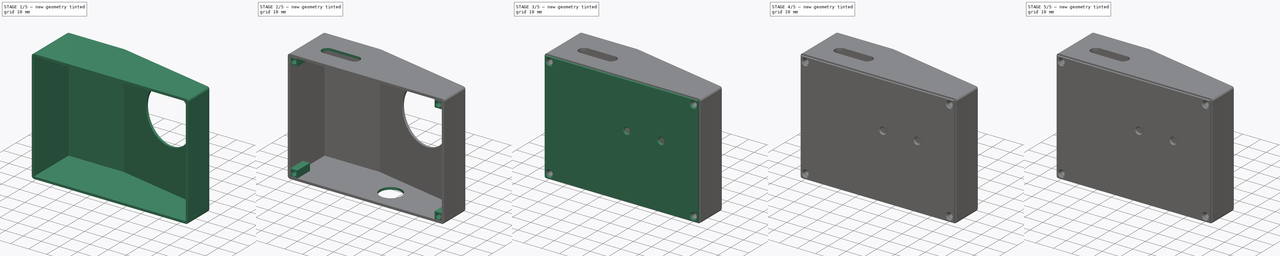
[diagram: build sequence overview — one tinted view per stage of 5, left to right]
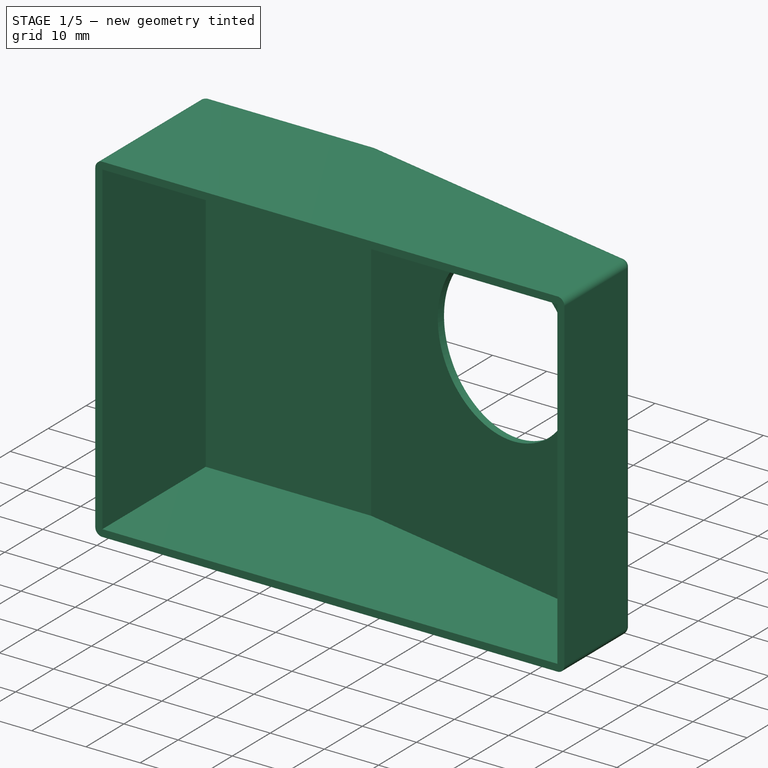
[diagram: stage 1 of 5 — iso view after this stage's code; geometry added in this stage tinted green]
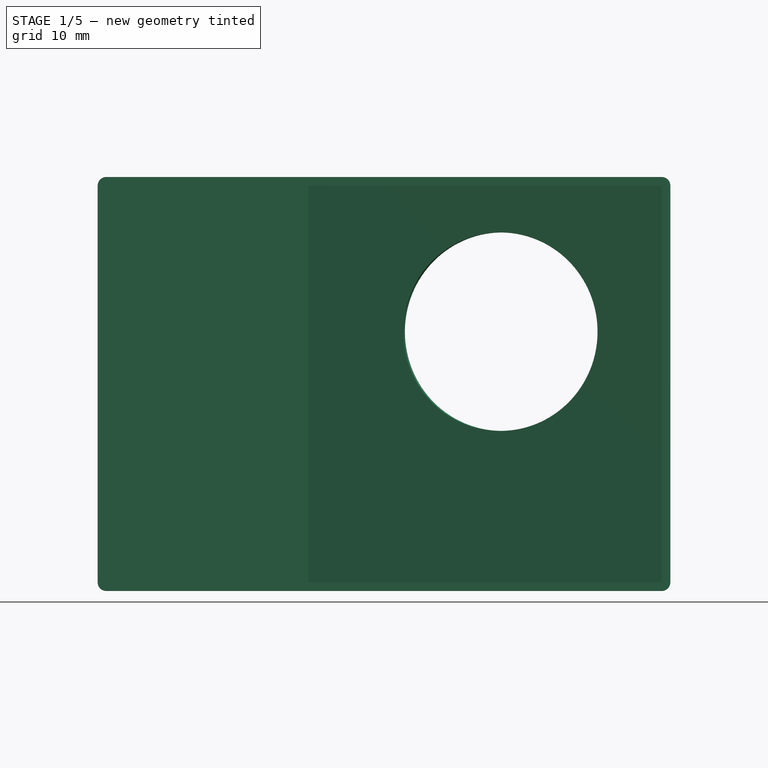
[diagram: stage 1 of 5 — front view after this stage's code; geometry added in this stage tinted green]
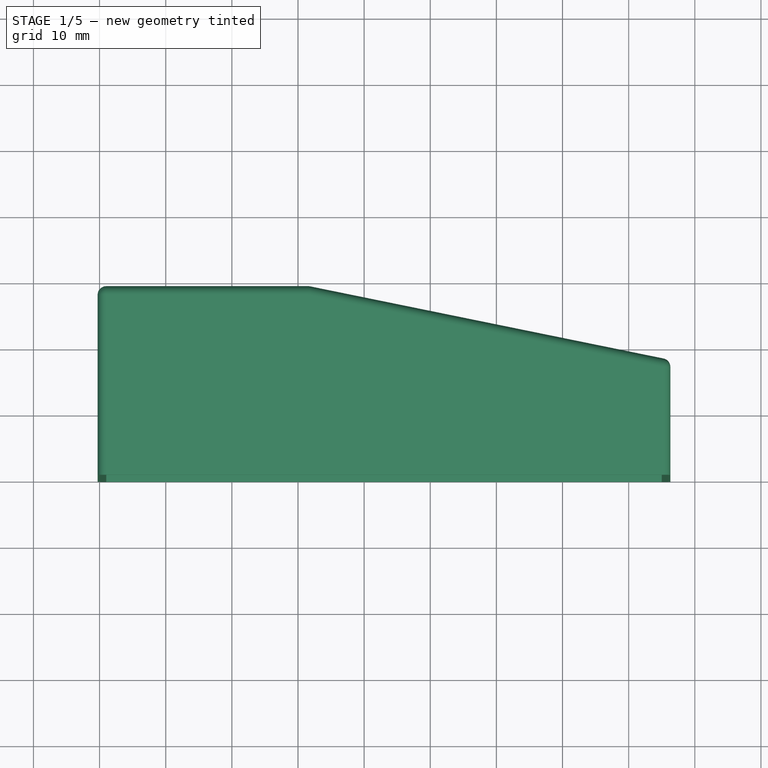
[diagram: stage 1 of 5 — top view after this stage's code; geometry added in this stage tinted green]
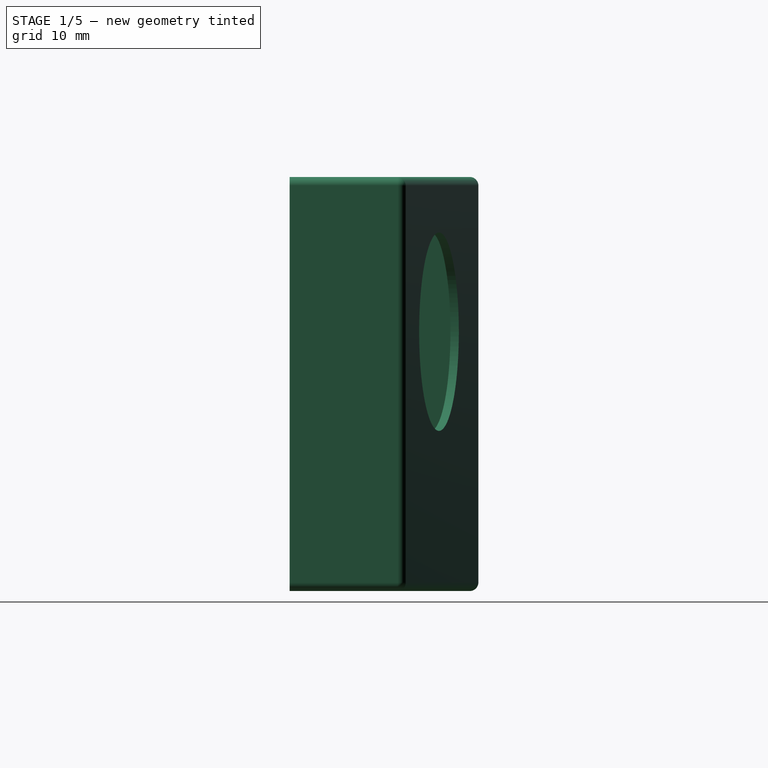
[diagram: stage 1 of 5 — right view after this stage's code; geometry added in this stage tinted green]
FCSTD DOCUMENT  (FreeCAD 0.19R)
Label: declic-joystick-mouse-v02
License: All rights reserved
LicenseURL: http://en.wikipedia.org/wiki/All_rights_reserved
objects: Sketcher::SketchObject×14, PartDesign::Pad×8, PartDesign::Pocket×5, PartDesign::Body×3, App::Part×3, PartDesign::Thickness×1, PartDesign::ShapeBinder×1, PartDesign::Chamfer×1, PartDesign::Plane×1
note: 47 computed .brp shape members not serialized (recipe doc carries the construction recipe); baked Part::Feature solids carry a one-line shape summary decoded from their .brp

FEATURE [PartDesign::Body] Body  label="declic-joystick-mouse-v02_joystick-support_v01_body"
  Group = -> [Sketch,Pad,Sketch001,Pad001,Sketch002,Pocket,Sketch003,Pocket001,Sketch004,Pad002,Sketch005,Pad003]
  Origin = -> Origin001
  Tip = -> Pad003
FEATURE [App::Part] Part  label="declic-joystick-mouse-v02_joystick-support_v01"
  Group = -> [Body]
  Origin = -> Origin
FEATURE [Sketcher::SketchObject] Sketch007
  MapMode = 5
  Support = -> [XY_Plane004]
  sketch-geometry (8):
    g0: LineSegment [constr] StartX=0 StartY=0 StartZ=0 EndX=-48.9898 EndY=10 EndZ=0
    g1: LineSegment [constr] StartX=-48.9898 StartY=10 StartZ=0 EndX=-48.9898 EndY=0 EndZ=0
    g2: LineSegment [constr] StartX=-48.9898 StartY=0 StartZ=0 EndX=0 EndY=0 EndZ=0
    g3: LineSegment StartX=5 StartY=0 StartZ=0 EndX=5 EndY=16.3299 EndZ=0
    g4: LineSegment StartX=5 StartY=16.3299 StartZ=0 EndX=-48.4572 EndY=27.2418 EndZ=0
    g5: LineSegment StartX=-48.4572 StartY=27.2418 StartZ=0 EndX=-78.9898 EndY=27.2418 EndZ=0
    g6: LineSegment StartX=-78.9898 StartY=27.2418 StartZ=0 EndX=-78.9898 EndY=0 EndZ=0
    g7: LineSegment StartX=-78.9898 StartY=0 StartZ=0 EndX=5 EndY=0 EndZ=0
  constraints (22):
    c: Coincident(g-1,g0)
    c: Coincident(g0,g1)
    c: PointOnObject(g1,g-1)
    c: Vertical(g1)
    c: Coincident(g1,g2)
    c: Coincident(g2,g0)
    c: Distance(g0) = 50
    c: DistanceY(g1,g1) = 10
    c: PointOnObject(g3,g-1)
    c: Vertical(g3)
    c: Coincident(g3,g4)
    c: Coincident(g4,g5)
    c: Horizontal(g5)
    c: Coincident(g5,g6)
    c: PointOnObject(g6,g-1)
    c: Vertical(g6)
    c: Coincident(g6,g7)
    c: Coincident(g7,g3)
    c: Parallel(g0,g4)
    c: Distance(g0,g4) = 17
    c: DistanceX(g-1,g3) = 5
    c: DistanceX(g6,g1) = 30
FEATURE [Sketcher::SketchObject] CopySketch007
  sketch-geometry (8):
    g0: LineSegment [constr] StartX=0 StartY=0 StartZ=0 EndX=-48.9898 EndY=10 EndZ=0
    g1: LineSegment [constr] StartX=-48.9898 StartY=10 StartZ=0 EndX=-48.9898 EndY=0 EndZ=0
    g2: LineSegment [constr] StartX=-48.9898 StartY=0 StartZ=0 EndX=0 EndY=0 EndZ=0
    g3: LineSegment StartX=5 StartY=0 StartZ=0 EndX=5 EndY=16.3299 EndZ=0
    g4: LineSegment StartX=5 StartY=16.3299 StartZ=0 EndX=-48.4572 EndY=27.2418 EndZ=0
    g5: LineSegment StartX=-48.4572 StartY=27.2418 StartZ=0 EndX=-78.9898 EndY=27.2418 EndZ=0
    g6: LineSegment StartX=-78.9898 StartY=27.2418 StartZ=0 EndX=-78.9898 EndY=0 EndZ=0
    g7: LineSegment StartX=-78.9898 StartY=0 StartZ=0 EndX=5 EndY=0 EndZ=0
  constraints (22):
    c: Coincident(g-1,g0)
    c: Coincident(g0,g1)
    c: PointOnObject(g1,g-1)
    c: Vertical(g1)
    c: Coincident(g1,g2)
    c: Coincident(g2,g0)
    c: Distance(g0) = 50
    c: DistanceY(g1,g1) = 10
    c: PointOnObject(g3,g-1)
    c: Vertical(g3)
    c: Coincident(g3,g4)
    c: Coincident(g4,g5)
    c: Horizontal(g5)
    c: Coincident(g5,g6)
    c: PointOnObject(g6,g-1)
    c: Vertical(g6)
    c: Coincident(g6,g7)
    c: Coincident(g7,g3)
    c: Parallel(g0,g4)
    c: Distance(g0,g4) = 17
    c: DistanceX(g-1,g3) = 5
    c: DistanceX(g6,g1) = 30
FEATURE [PartDesign::Pad] Pad004
  Length = 60
  Length2 = 100
  Midplane = true
  Profile = -> CopySketch007
  Type = 0
FEATURE [PartDesign::Thickness] Thickness
  Base = -> Pad004 [Face5]
  BaseFeature = -> Pad004
  Intersection = false
  Join = 0
  Mode = 0
  Value = 1.3
FEATURE [Sketcher::SketchObject] Sketch008
  MapMode = 5
  Placement = pos=(3.66,17.9303,0) rot=(0.071251,0.70531,0.70531;2.99933rad)
  Support = -> [Thickness]
  sketch-geometry (1):
    g0: Circle CenterX=23.274 CenterY=7.90849 CenterZ=0 NormalX=0 NormalY=0 NormalZ=1 AngleXU=0 Radius=15
  constraints (1):
    c: Diameter(g0) = 30
FEATURE [PartDesign::Pocket] Pocket002
  BaseFeature = -> Thickness
  Length = 5
  Length2 = 100
  Profile = -> Sketch008
  Type = 0
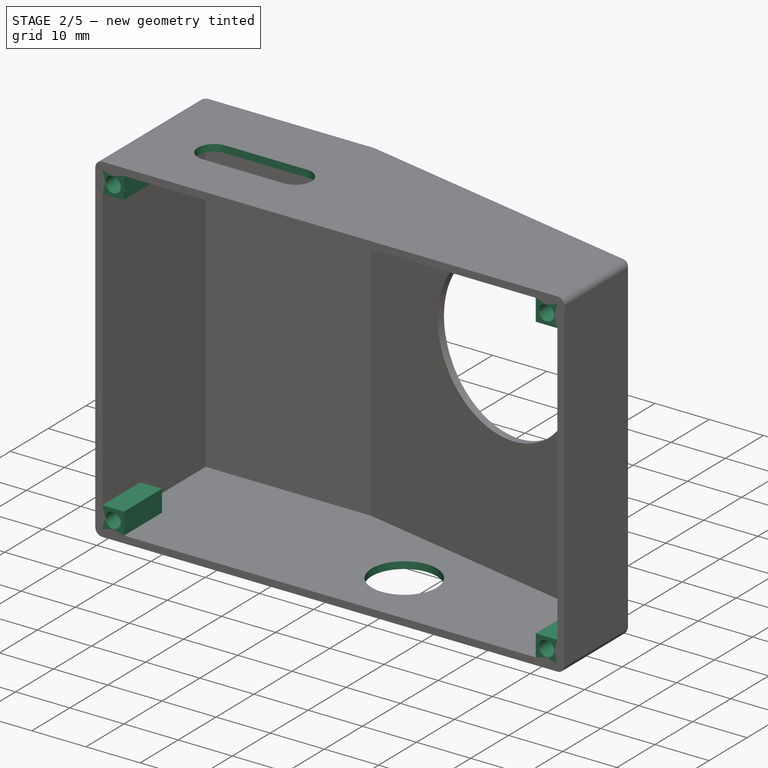
[diagram: stage 2 of 5 — iso view after this stage's code; geometry added in this stage tinted green]
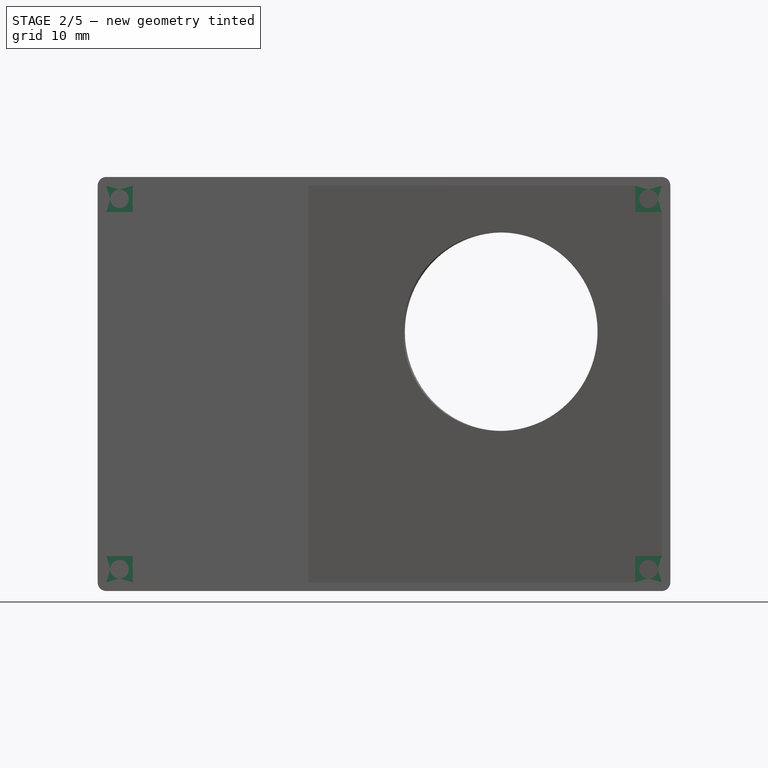
[diagram: stage 2 of 5 — front view after this stage's code; geometry added in this stage tinted green]
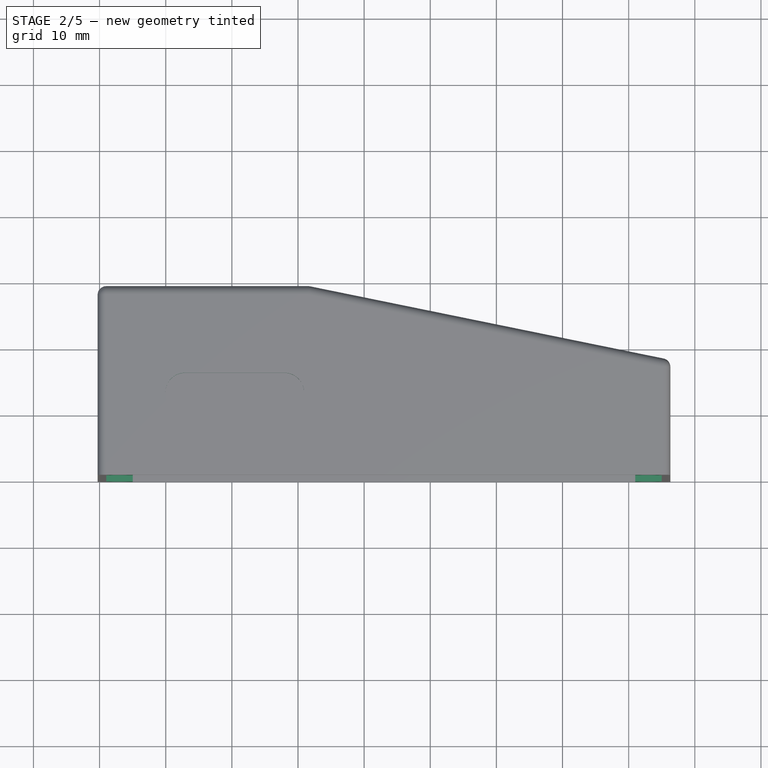
[diagram: stage 2 of 5 — top view after this stage's code; geometry added in this stage tinted green]
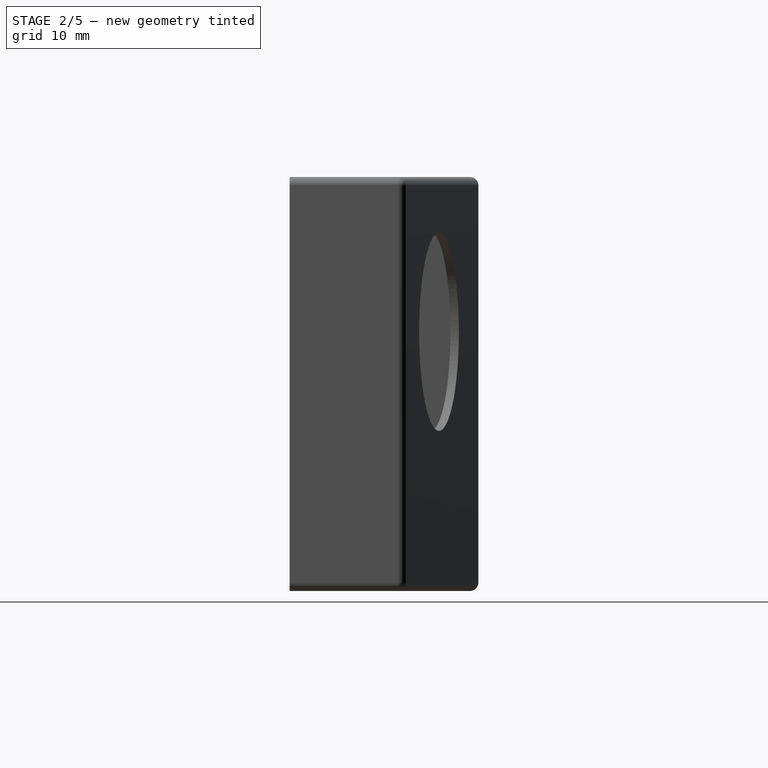
[diagram: stage 2 of 5 — right view after this stage's code; geometry added in this stage tinted green]
FEATURE [Sketcher::SketchObject] Sketch010
  ExternalGeometry = -> [Pocket002]
  MapMode = 5
  Placement = pos=(0,0,0) rot=(1,0,0;1.5708rad)
  Support = -> [Pocket002]
  sketch-geometry (24):
    g0: LineSegment [constr] StartX=-76.9898 StartY=28 StartZ=0 EndX=3 EndY=28 EndZ=0
    g1: LineSegment [constr] StartX=3 StartY=28 StartZ=0 EndX=3 EndY=-28 EndZ=0
    g2: LineSegment [constr] StartX=3 StartY=-28 StartZ=0 EndX=-76.9898 EndY=-28 EndZ=0
    g3: LineSegment [constr] StartX=-76.9898 StartY=-28 StartZ=0 EndX=-76.9898 EndY=28 EndZ=0
    g4: Circle CenterX=-76.9898 CenterY=28 CenterZ=0 NormalX=0 NormalY=0 NormalZ=1 AngleXU=0 Radius=1.4
    g5: Circle CenterX=-76.9898 CenterY=-28 CenterZ=0 NormalX=0 NormalY=0 NormalZ=1 AngleXU=0 Radius=1.4
    g6: Circle CenterX=3 CenterY=-28 CenterZ=0 NormalX=0 NormalY=0 NormalZ=1 AngleXU=0 Radius=1.4
    g7: Circle CenterX=3 CenterY=28 CenterZ=0 NormalX=0 NormalY=0 NormalZ=1 AngleXU=0 Radius=1.4
    g8: LineSegment StartX=-78.9898 StartY=30 StartZ=0 EndX=-74.9898 EndY=30 EndZ=0
    g9: LineSegment StartX=-74.9898 StartY=30 StartZ=0 EndX=-74.9898 EndY=26 EndZ=0
    g10: LineSegment StartX=-74.9898 StartY=26 StartZ=0 EndX=-78.9898 EndY=26 EndZ=0
    g11: LineSegment StartX=-78.9898 StartY=26 StartZ=0 EndX=-78.9898 EndY=30 EndZ=0
    g12: LineSegment StartX=-78.9898 StartY=-30 StartZ=0 EndX=-74.9898 EndY=-30 EndZ=0
    g13: LineSegment StartX=-74.9898 StartY=-30 StartZ=0 EndX=-74.9898 EndY=-26 EndZ=0
    g14: LineSegment StartX=-74.9898 StartY=-26 StartZ=0 EndX=-78.9898 EndY=-26 EndZ=0
    g15: LineSegment StartX=-78.9898 StartY=-26 StartZ=0 EndX=-78.9898 EndY=-30 EndZ=0
    g16: LineSegment StartX=5 StartY=-30 StartZ=0 EndX=1 EndY=-30 EndZ=0
    g17: LineSegment StartX=1 StartY=-30 StartZ=0 EndX=1 EndY=-26 EndZ=0
    g18: LineSegment StartX=1 StartY=-26 StartZ=0 EndX=5 EndY=-26 EndZ=0
    g19: LineSegment StartX=5 StartY=-26 StartZ=0 EndX=5 EndY=-30 EndZ=0
    g20: LineSegment StartX=5 StartY=30 StartZ=0 EndX=1 EndY=30 EndZ=0
    g21: LineSegment StartX=1 StartY=30 StartZ=0 EndX=1 EndY=26 EndZ=0
    g22: LineSegment StartX=1 StartY=26 StartZ=0 EndX=5 EndY=26 EndZ=0
    g23: LineSegment StartX=5 StartY=26 StartZ=0 EndX=5 EndY=30 EndZ=0
  constraints (66):
    c: Coincident(g0,g1)
    c: Coincident(g1,g2)
    c: Coincident(g2,g3)
    c: Coincident(g3,g0)
    c: Horizontal(g0)
    c: Horizontal(g2)
    c: Vertical(g1)
    c: Vertical(g3)
    c: DistanceY(g-4,g2) = 2
    c: DistanceX(g-4,g2) = 2
    c: DistanceY(g0,g-5) = 2
    c: DistanceX(g1,g-6) = 2
    c: Distance(g3) = 56
    c: Distance(g0) = 79.9898
    c: Coincident(g5,g2)
    c: Coincident(g6,g1)
    c: Coincident(g7,g0)
    c: Equal(g5,g4)
    c: Equal(g5,g6)
    c: Equal(g5,g7)
    c: Radius(g7) = 1.4
    c: Coincident(g8,g9)
    c: Coincident(g9,g10)
    c: Coincident(g10,g11)
    c: Coincident(g11,g8)
    c: Horizontal(g8)
    c: Horizontal(g10)
    c: Vertical(g9)
    c: Vertical(g11)
    c: Coincident(g8,g-5)
    c: Coincident(g4,g0)
    c: Distance(g4,g10) = 2
    c: Distance(g4,g9) = 2
    c: Coincident(g12,g13)
    c: Coincident(g13,g14)
    c: Coincident(g14,g15)
    c: Coincident(g15,g12)
    c: Horizontal(g12)
    c: Horizontal(g14)
    c: Vertical(g13)
    c: Vertical(g15)
    c: Coincident(g12,g-4)
    c: Distance(g5,g14) = 2
    c: Distance(g5,g13) = 2
    c: Coincident(g16,g17)
    c: Coincident(g17,g18)
    c: Coincident(g18,g19)
    c: Coincident(g19,g16)
    c: Horizontal(g16)
    c: Horizontal(g18)
    c: Vertical(g17)
    c: Vertical(g19)
    c: Coincident(g16,g-6)
    c: Distance(g6,g18) = 2
    c: Distance(g6,g17) = 2
    c: Coincident(g20,g21)
    c: Coincident(g21,g22)
    c: Coincident(g22,g23)
    c: Coincident(g23,g20)
    c: Horizontal(g20)
    c: Horizontal(g22)
    c: Vertical(g21)
    c: Vertical(g23)
    c: Coincident(g20,g-6)
    c: Distance(g7,g21) = 2
    c: Distance(g7,g22) = 2
FEATURE [PartDesign::Pad] Pad006
  BaseFeature = -> Pocket002
  Length = 10
  Length2 = 100
  Profile = -> Sketch010
  Reversed = true
  Type = 0
FEATURE [PartDesign::Body] Body002  label="declic-joystick-mouse-v02_bottom_v01_body"
  Group = -> [ShapeBinder,Sketch009,Pad005,Chamfer,DatumPlane,Sketch011,Pad007]
  Origin = -> Origin005
  Tip = -> Pad007
FEATURE [App::Part] Part002  label="declic-joystick-mouse-v02_bottom_v01"
  Group = -> [Body002]
  Origin = -> Origin004
  Placement = pos=(0,0,-5) rot=(0,0,1;0rad)
FEATURE [Sketcher::SketchObject] Sketch012
  MapMode = 5
  Placement = pos=(0,0,31.3) rot=(0,0,1;0rad)
  Support = -> [Pad006]
  sketch-geometry (4):
    g0: ArcOfCircle CenterX=-67.0673 CenterY=12.4269 CenterZ=0 NormalX=0 NormalY=0 NormalZ=1 AngleXU=0 Radius=3 StartAngle=1.5708 EndAngle=4.71239
    g1: ArcOfCircle CenterX=-52.0673 CenterY=12.4269 CenterZ=0 NormalX=0 NormalY=0 NormalZ=1 AngleXU=0 Radius=3 StartAngle=4.71239 EndAngle=7.85398
    g2: LineSegment StartX=-67.0673 StartY=9.42694 StartZ=0 EndX=-52.0673 EndY=9.42694 EndZ=0
    g3: LineSegment StartX=-67.0673 StartY=15.4269 StartZ=0 EndX=-52.0673 EndY=15.4269 EndZ=0
  constraints (8):
    c: Tangent(g0,g3) = 1.5708
    c: Tangent(g0,g2) = -1.5708
    c: Tangent(g2,g1) = -1.5708
    c: Tangent(g3,g1) = 1.5708
    c: Horizontal(g2)
    c: Equal(g0,g1)
    c: Distance(g3) = 15
    c: Radius(g0) = 3
FEATURE [PartDesign::Pocket] Pocket003
  BaseFeature = -> Pad006
  Length = 5
  Length2 = 100
  Profile = -> Sketch012
  Type = 0
FEATURE [Sketcher::SketchObject] Sketch013
  MapMode = 5
  Placement = pos=(0,0,-31.3) rot=(1,0,0;3.14159rad)
  Support = -> [Pocket003]
  sketch-geometry (1):
    g0: Circle CenterX=-31.5713 CenterY=-11.874 CenterZ=0 NormalX=0 NormalY=0 NormalZ=1 AngleXU=0 Radius=6
  constraints (1):
    c: Radius(g0) = 6
FEATURE [PartDesign::Pocket] Pocket004
  BaseFeature = -> Pocket003
  Length = 5
  Length2 = 100
  Profile = -> Sketch013
  Type = 0
FEATURE [PartDesign::Body] Body001  label="declic-joystick-mouse-v02_box_v01_body"
  Group = -> [Pad004,Thickness,Sketch008,Pocket002,Sketch010,Pad006,Sketch012,Pocket003,Sketch013,Pocket004]
  Origin = -> Origin003
  Tip = -> Pocket004
FEATURE [App::Part] Part001  label="declic-joystick-mouse-v02_box_v01"
  Group = -> [Body001,CopySketch007]
  Origin = -> Origin002
  Placement = pos=(0,0,-5) rot=(0,0,1;0rad)
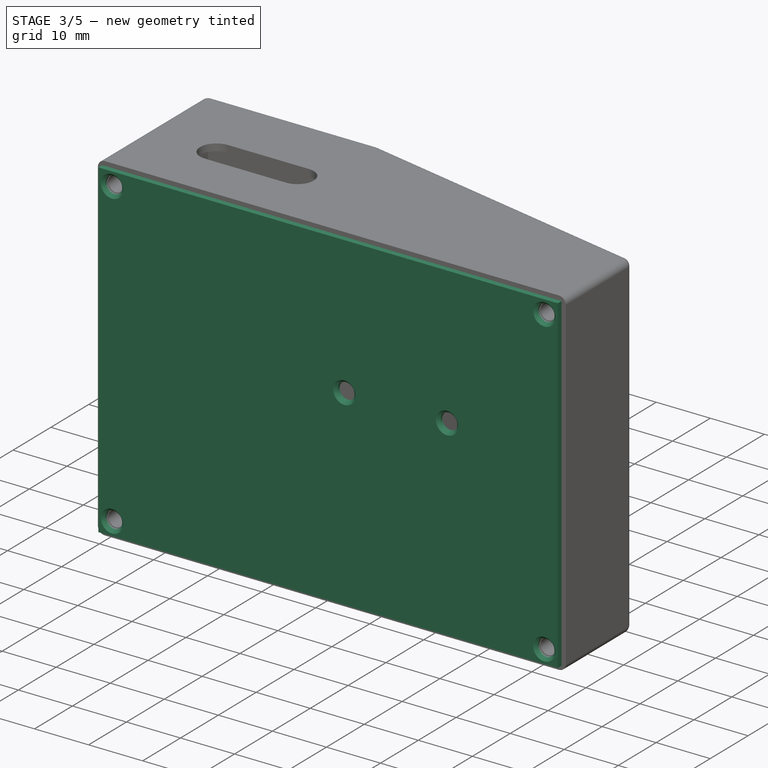
[diagram: stage 3 of 5 — iso view after this stage's code; geometry added in this stage tinted green]
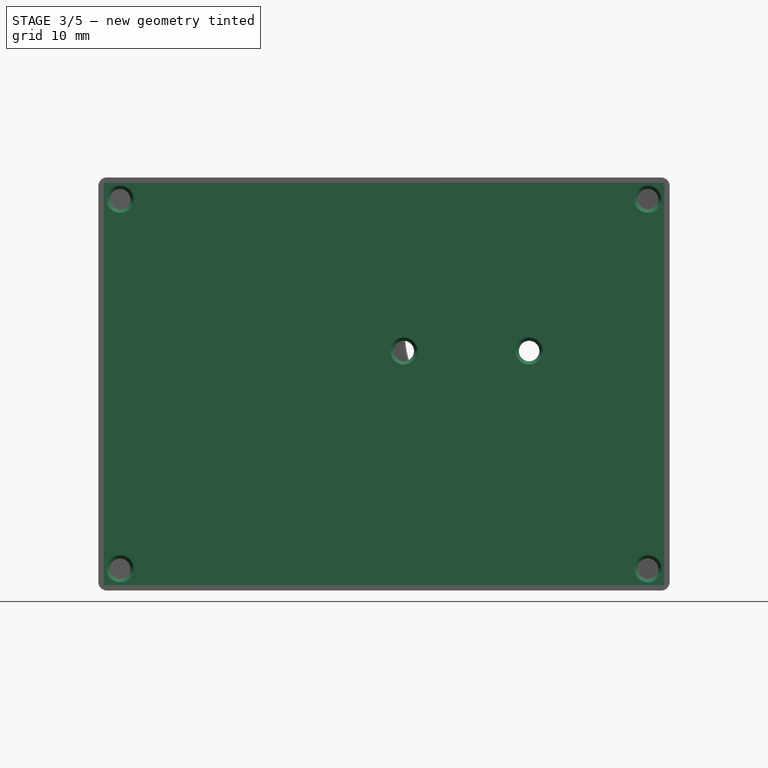
[diagram: stage 3 of 5 — front view after this stage's code; geometry added in this stage tinted green]
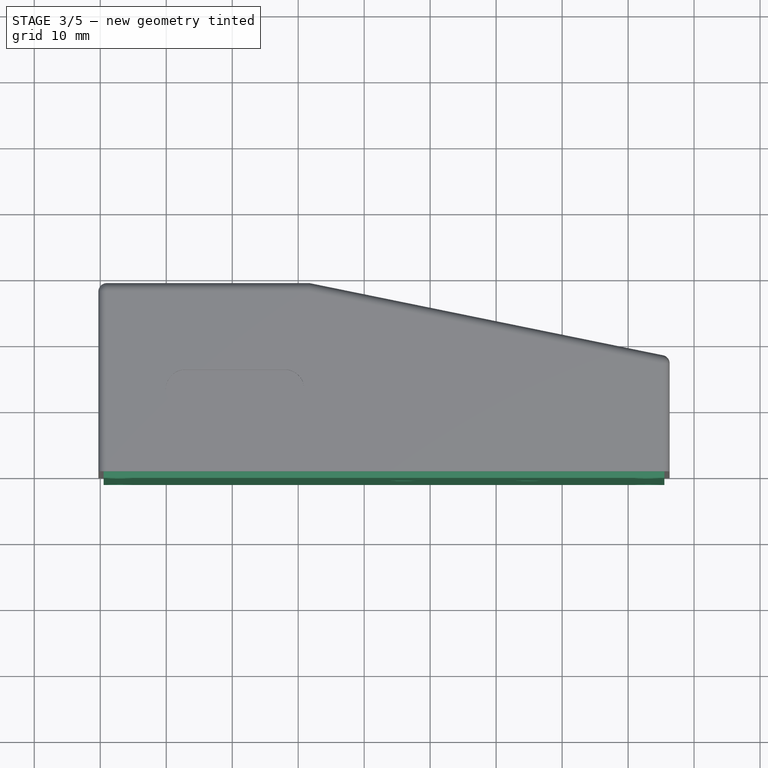
[diagram: stage 3 of 5 — top view after this stage's code; geometry added in this stage tinted green]
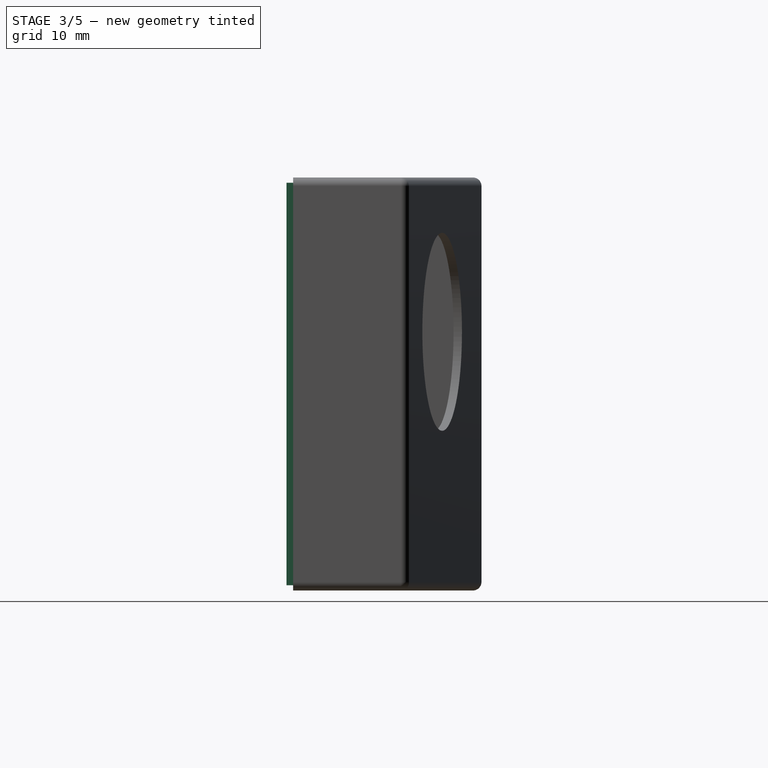
[diagram: stage 3 of 5 — right view after this stage's code; geometry added in this stage tinted green]
FEATURE [PartDesign::ShapeBinder] ShapeBinder
  Support = -> [Pocket002]
  TraceSupport = false
FEATURE [Sketcher::SketchObject] Sketch009
  ExternalGeometry = -> [ShapeBinder]
  MapMode = 5
  Placement = pos=(0,0,0) rot=(1,0,0;1.5708rad)
  Support = -> [XZ_Plane005]
  sketch-geometry (15):
    g0: LineSegment StartX=5.5 StartY=30.5 StartZ=0 EndX=-79.4898 EndY=30.5 EndZ=0
    g1: LineSegment StartX=-79.4898 StartY=30.5 StartZ=0 EndX=-79.4898 EndY=-30.5 EndZ=0
    g2: LineSegment StartX=-79.4898 StartY=-30.5 StartZ=0 EndX=5.5 EndY=-30.5 EndZ=0
    g3: LineSegment StartX=5.5 StartY=-30.5 StartZ=0 EndX=5.5 EndY=30.5 EndZ=0
    g4: LineSegment [constr] StartX=-76.9898 StartY=28 StartZ=0 EndX=3 EndY=28 EndZ=0
    g5: LineSegment [constr] StartX=3 StartY=28 StartZ=0 EndX=3 EndY=-28 EndZ=0
    g6: LineSegment [constr] StartX=3 StartY=-28 StartZ=0 EndX=-76.9898 EndY=-28 EndZ=0
    g7: LineSegment [constr] StartX=-76.9898 StartY=-28 StartZ=0 EndX=-76.9898 EndY=28 EndZ=0
    g8: Circle CenterX=3 CenterY=-28 CenterZ=0 NormalX=0 NormalY=0 NormalZ=1 AngleXU=0 Radius=1.55
    g9: Circle CenterX=3 CenterY=28 CenterZ=0 NormalX=0 NormalY=0 NormalZ=1 AngleXU=0 Radius=1.55
    g10: Circle CenterX=-76.9898 CenterY=28 CenterZ=0 NormalX=0 NormalY=0 NormalZ=1 AngleXU=0 Radius=1.55
    g11: Circle CenterX=-76.9898 CenterY=-28 CenterZ=0 NormalX=0 NormalY=0 NormalZ=1 AngleXU=0 Radius=1.55
    g12: LineSegment [constr] StartX=5.5 StartY=5 StartZ=0 EndX=-79.4898 EndY=5 EndZ=0
    g13: Circle CenterX=-15 CenterY=5 CenterZ=0 NormalX=0 NormalY=0 NormalZ=1 AngleXU=0 Radius=1.55
    g14: Circle CenterX=-34 CenterY=5 CenterZ=0 NormalX=0 NormalY=0 NormalZ=1 AngleXU=0 Radius=1.55
  constraints (42):
    c: Coincident(g0,g1)
    c: Coincident(g1,g2)
    c: Coincident(g2,g3)
    c: Coincident(g3,g0)
    c: Horizontal(g0)
    c: Horizontal(g2)
    c: Vertical(g1)
    c: Vertical(g3)
    c: DistanceX(g1,g-5) = 0.5
    c: DistanceY(g1,g-5) = 0.5
    c: DistanceY(g-6,g0) = 0.5
    c: DistanceX(g-6,g0) = 0.5
    c: Coincident(g4,g5)
    c: Coincident(g5,g6)
    c: Coincident(g6,g7)
    c: Coincident(g7,g4)
    c: Horizontal(g4)
    c: Horizontal(g6)
    c: Vertical(g5)
    c: Vertical(g7)
    c: Distance(g4,g-3) = 2
    c: Distance(g4,g-4) = 2
    c: Distance(g5,g-5) = 2
    c: Distance(g5,g-6) = 2
    c: Coincident(g8,g5)
    c: Coincident(g9,g4)
    c: Coincident(g10,g4)
    c: Coincident(g11,g6)
    c: Equal(g11,g10)
    c: Equal(g11,g8)
    c: Equal(g11,g9)
    c: Radius(g11) = 1.55
    c: PointOnObject(g12,g3)
    c: PointOnObject(g12,g1)
    c: Horizontal(g12)
    c: PointOnObject(g13,g12)
    c: PointOnObject(g14,g12)
    c: Distance(g12,g2) = 35.5
    c: Distance(g13,g3) = 20.5
    c: Distance(g14,g13) = 19
    c: Equal(g13,g14)
    c: Radius(g13) = 1.55
FEATURE [PartDesign::Pad] Pad005
  Length = 1
  Length2 = 100
  Placement = pos=(0,0,0) rot=(1,0,0;1.5708rad)
  Profile = -> Sketch009
  Type = 0
FEATURE [PartDesign::Chamfer] Chamfer
  Base = -> Pad005 [Edge24,Edge15,Edge18,Edge21,Edge27,Edge30]
  BaseFeature = -> Pad005
  Placement = pos=(0,0,0) rot=(1,0,0;1.5708rad)
  Size = 0.5
FEATURE [PartDesign::Plane] DatumPlane
  AttachmentOffset = pos=(0,0,-28) rot=(0,0,1;0rad)
  Length = 73.7893
  MapMode = 5
  Placement = pos=(-51.4898,0,6.2e-15) rot=(0.707107,0,-0.707107;3.14159rad)
  ResizeMode = 0
  Support = -> [Chamfer]
  Width = 61.1893
FEATURE [Sketcher::SketchObject] Sketch011
  ExternalGeometry = -> [Chamfer]
  MapMode = 5
  Placement = pos=(-51.4898,0,6.2e-15) rot=(0.707107,0,-0.707107;3.14159rad)
  Support = -> [DatumPlane]
  sketch-geometry (16):
    g0: LineSegment StartX=-27.5 StartY=1 StartZ=0 EndX=29.5 EndY=1 EndZ=0
    g1: LineSegment StartX=29.5 StartY=1 StartZ=0 EndX=29.5 EndY=-6.9 EndZ=0
    g2: LineSegment StartX=29.5 StartY=-6.9 StartZ=0 EndX=24.5 EndY=-6.9 EndZ=0
    g3: LineSegment StartX=24.5 StartY=-6.9 StartZ=0 EndX=24.5 EndY=-4.9 EndZ=0
    g4: LineSegment StartX=24.5 StartY=-4.9 StartZ=0 EndX=26.5 EndY=-4.9 EndZ=0
    g5: LineSegment StartX=26.5 StartY=-4.9 StartZ=0 EndX=26.5 EndY=-3 EndZ=0
    g6: LineSegment StartX=26.5 StartY=-3 StartZ=0 EndX=24.5 EndY=-3 EndZ=0
    g7: LineSegment StartX=24.5 StartY=-3 StartZ=0 EndX=24.5 EndY=-1.51e-14 EndZ=0
    g8: LineSegment StartX=24.5 StartY=-1.51e-14 StartZ=0 EndX=-22.5 EndY=-1.51e-14 EndZ=0
    g9: LineSegment StartX=-22.5 StartY=-1.51e-14 StartZ=0 EndX=-22.5 EndY=-3 EndZ=0
    g10: LineSegment StartX=-22.5 StartY=-3 StartZ=0 EndX=-24.5 EndY=-3 EndZ=0
    g11: LineSegment StartX=-24.5 StartY=-3 StartZ=0 EndX=-24.5 EndY=-4.9 EndZ=0
    g12: LineSegment StartX=-24.5 StartY=-4.9 StartZ=0 EndX=-22.5 EndY=-4.9 EndZ=0
    g13: LineSegment StartX=-22.5 StartY=-4.9 StartZ=0 EndX=-22.5 EndY=-6.9 EndZ=0
    g14: LineSegment StartX=-22.5 StartY=-6.9 StartZ=0 EndX=-27.5 EndY=-6.9 EndZ=0
    g15: LineSegment StartX=-27.5 StartY=-6.9 StartZ=0 EndX=-27.5 EndY=1 EndZ=0
  constraints (43):
    c: PointOnObject(g0,g-6)
    c: PointOnObject(g0,g-6)
    c: Coincident(g0,g1)
    c: Vertical(g1)
    c: Coincident(g1,g2)
    c: Coincident(g2,g3)
    c: Coincident(g3,g4)
    c: Horizontal(g4)
    c: Coincident(g4,g5)
    c: Coincident(g5,g6)
    c: Coincident(g6,g7)
    c: Coincident(g7,g8)
    c: Horizontal(g8)
    c: Coincident(g8,g9)
    c: Coincident(g9,g10)
    c: Coincident(g10,g11)
    c: Coincident(g11,g12)
    c: Coincident(g12,g13)
    c: Coincident(g13,g14)
    c: Coincident(g14,g15)
    c: Coincident(g15,g0)
    c: PointOnObject(g8,g-3)
    c: Horizontal(g10)
    c: Horizontal(g14)
    c: Vertical(g15)
    c: Vertical(g9)
    c: Tangent(g13,g9)
    c: Vertical(g11)
    c: Vertical(g7)
    c: Tangent(g3,g7)
    c: Vertical(g5)
    c: Tangent(g10,g6)
    c: Tangent(g4,g12)
    c: Tangent(g14,g2)
    c: Equal(g12,g4)
    c: DistanceX(g10,g5) = 51
    c: Distance(g12) = 2
    c: Equal(g2,g14)
    c: Distance(g14) = 5
    c: Distance(g13) = 2
    c: Distance(g11) = 1.9
    c: Distance(g9) = 3
    c: Distance(g-5,g15) = 3
FEATURE [PartDesign::Pad] Pad007
  BaseFeature = -> Chamfer
  Length = 16
  Length2 = 100
  Placement = pos=(0,0,0) rot=(1,0,0;1.5708rad)
  Profile = -> Sketch011
  Type = 0
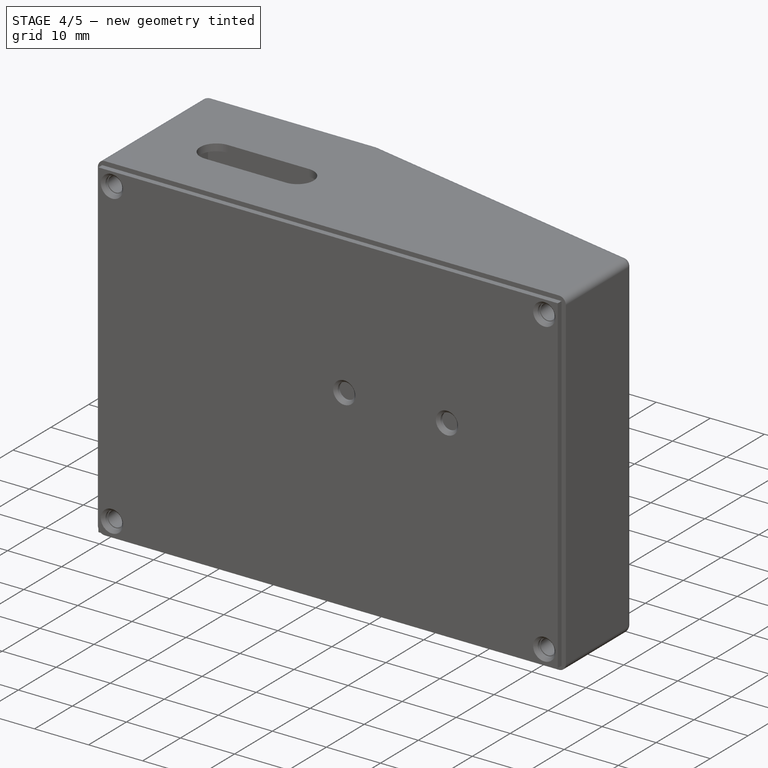
[diagram: stage 4 of 5 — iso view after this stage's code; geometry added in this stage tinted green]
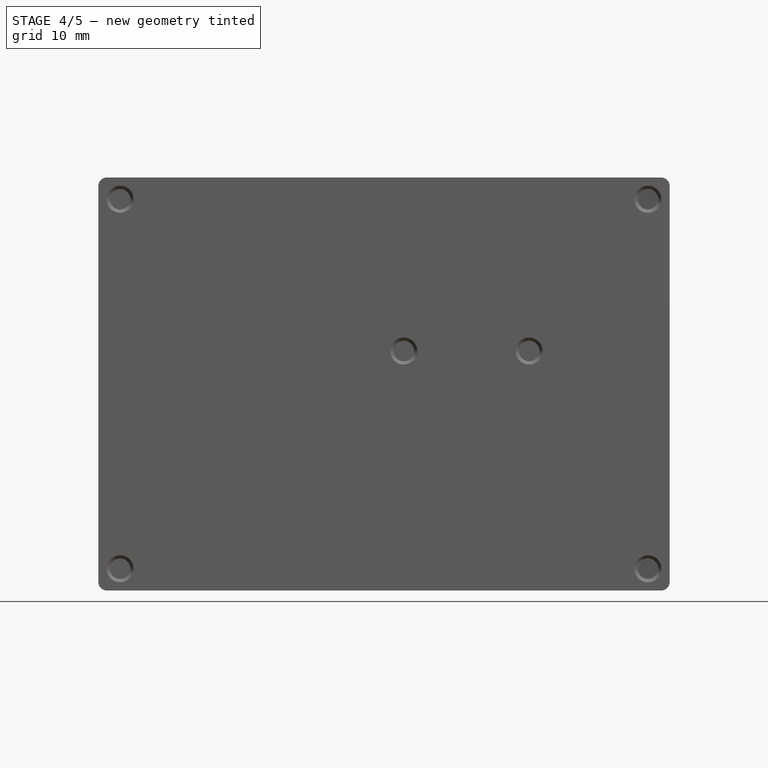
[diagram: stage 4 of 5 — front view after this stage's code; geometry added in this stage tinted green]
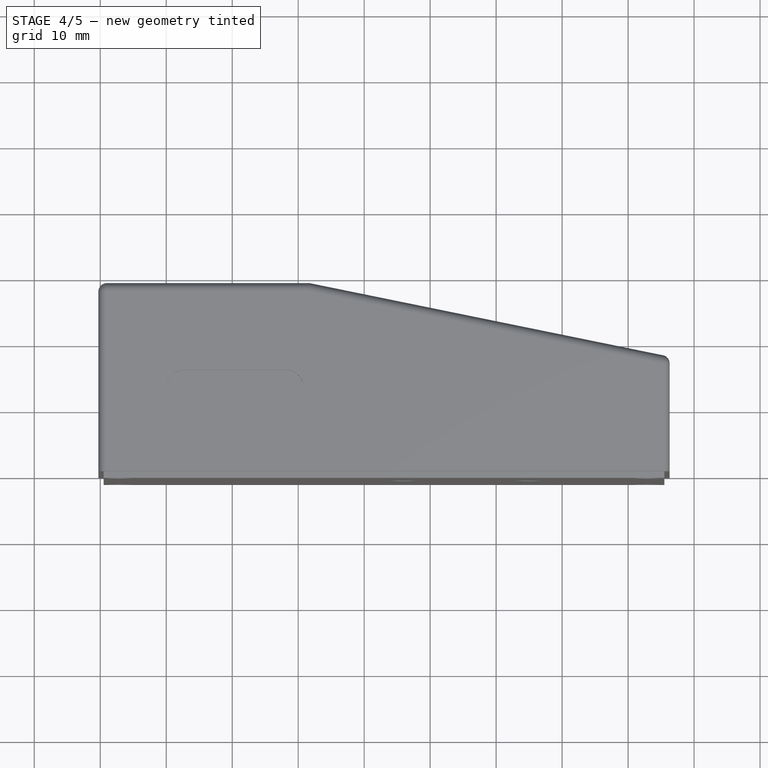
[diagram: stage 4 of 5 — top view after this stage's code; geometry added in this stage tinted green]
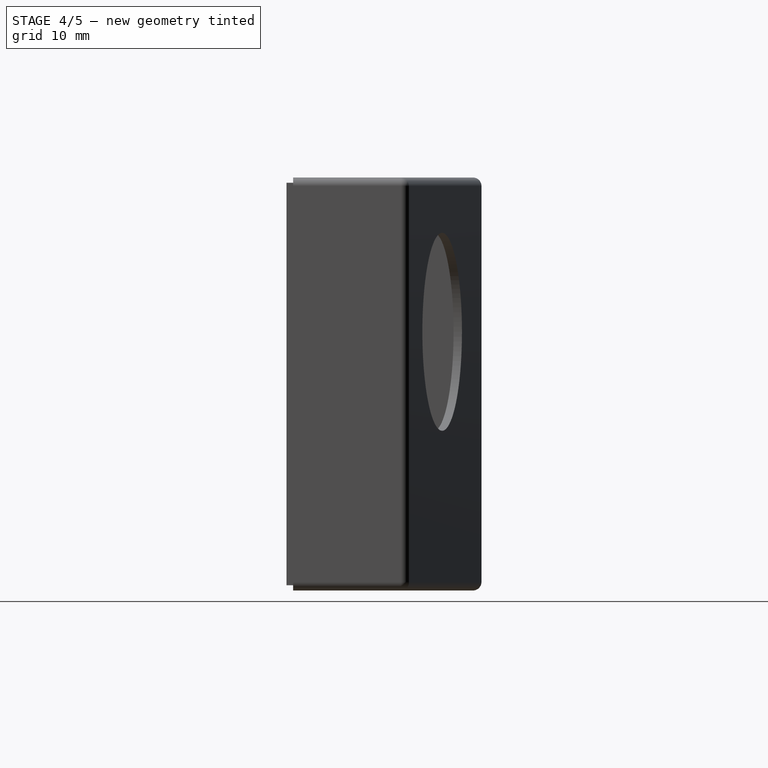
[diagram: stage 4 of 5 — right view after this stage's code; geometry added in this stage tinted green]
FEATURE [Sketcher::SketchObject] Sketch
  MapMode = 5
  Support = -> [XY_Plane001]
  sketch-geometry (3):
    g0: LineSegment StartX=0 StartY=0 StartZ=0 EndX=-48.9898 EndY=10 EndZ=0
    g1: LineSegment StartX=-48.9898 StartY=10 StartZ=0 EndX=-48.9898 EndY=0 EndZ=0
    g2: LineSegment StartX=-48.9898 StartY=0 StartZ=0 EndX=0 EndY=0 EndZ=0
  constraints (8):
    c: Coincident(g-1,g0)
    c: Coincident(g0,g1)
    c: PointOnObject(g1,g-1)
    c: Vertical(g1)
    c: Coincident(g1,g2)
    c: Coincident(g2,g0)
    c: Distance(g0) = 50
    c: DistanceY(g1,g1) = 10
FEATURE [PartDesign::Pad] Pad
  Length = 40
  Length2 = 100
  Midplane = true
  Profile = -> Sketch
  Type = 0
FEATURE [Sketcher::SketchObject] Sketch001
  ExternalGeometry = -> [Pad]
  MapMode = 5
  Placement = pos=(0,0,0) rot=(0.071251,0.70531,0.70531;2.99933rad)
  Support = -> [Pad]
  sketch-geometry (9):
    g0: LineSegment [constr] StartX=11 StartY=15.5 StartZ=0 EndX=42 EndY=15.5 EndZ=0
    g1: LineSegment [constr] StartX=42 StartY=15.5 StartZ=0 EndX=42 EndY=-15.5 EndZ=0
    g2: LineSegment [constr] StartX=42 StartY=-15.5 StartZ=0 EndX=11 EndY=-15.5 EndZ=0
    g3: LineSegment [constr] StartX=11 StartY=-15.5 StartZ=0 EndX=11 EndY=15.5 EndZ=0
    g4: Circle CenterX=42 CenterY=15.5 CenterZ=0 NormalX=0 NormalY=0 NormalZ=1 AngleXU=0 Radius=3
    g5: Circle CenterX=42 CenterY=-15.5 CenterZ=0 NormalX=0 NormalY=0 NormalZ=1 AngleXU=0 Radius=3
    g6: Circle CenterX=11 CenterY=-15.5 CenterZ=0 NormalX=0 NormalY=0 NormalZ=1 AngleXU=0 Radius=3
    g7: Circle CenterX=11 CenterY=15.5 CenterZ=0 NormalX=0 NormalY=0 NormalZ=1 AngleXU=0 Radius=3
    g8: LineSegment [constr] StartX=0 StartY=-20 StartZ=0 EndX=50 EndY=20 EndZ=0
  constraints (21):
    c: Coincident(g0,g1)
    c: Coincident(g1,g2)
    c: Coincident(g2,g3)
    c: Coincident(g3,g0)
    c: Horizontal(g0)
    c: Horizontal(g2)
    c: Vertical(g1)
    c: Coincident(g4,g0)
    c: Coincident(g5,g1)
    c: Coincident(g6,g2)
    c: Coincident(g7,g0)
    c: Equal(g4,g7)
    c: Equal(g4,g5)
    c: Equal(g4,g6)
    c: Radius(g4) = 3
    c: Distance(g0) = 31
    c: Distance(g1) = 31
    c: Coincident(g8,g-4)
    c: Coincident(g8,g-3)
    c: Symmetric(g7,g6,g-1)
    c: Distance(g4,g-6) = 8
FEATURE [PartDesign::Pad] Pad001
  BaseFeature = -> Pad
  Length = 5
  Length2 = 100
  Profile = -> Sketch001
  Type = 0
FEATURE [Sketcher::SketchObject] Sketch002
  ExternalGeometry = -> [Pad001]
  MapMode = 5
  Placement = pos=(1,4.89898,1.2e-15) rot=(0.071251,0.70531,0.70531;2.99933rad)
  Support = -> [Pad001]
  sketch-geometry (4):
    g0: Circle CenterX=42 CenterY=-15.5 CenterZ=0 NormalX=0 NormalY=0 NormalZ=1 AngleXU=0 Radius=1.35
    g1: Circle CenterX=11 CenterY=-15.5 CenterZ=0 NormalX=0 NormalY=0 NormalZ=1 AngleXU=0 Radius=1.35
    g2: Circle CenterX=42 CenterY=15.5 CenterZ=0 NormalX=0 NormalY=0 NormalZ=1 AngleXU=0 Radius=1.35
    g3: Circle CenterX=11 CenterY=15.5 CenterZ=0 NormalX=0 NormalY=0 NormalZ=1 AngleXU=0 Radius=1.35
  constraints (8):
    c: Coincident(g0,g-3)
    c: Coincident(g1,g-4)
    c: Coincident(g2,g-6)
    c: Coincident(g3,g-5)
    c: Equal(g1,g0)
    c: Equal(g1,g3)
    c: Equal(g1,g2)
    c: Radius(g1) = 1.35
FEATURE [PartDesign::Pocket] Pocket
  BaseFeature = -> Pad001
  Length = 5
  Length2 = 100
  Profile = -> Sketch002
  Type = 1
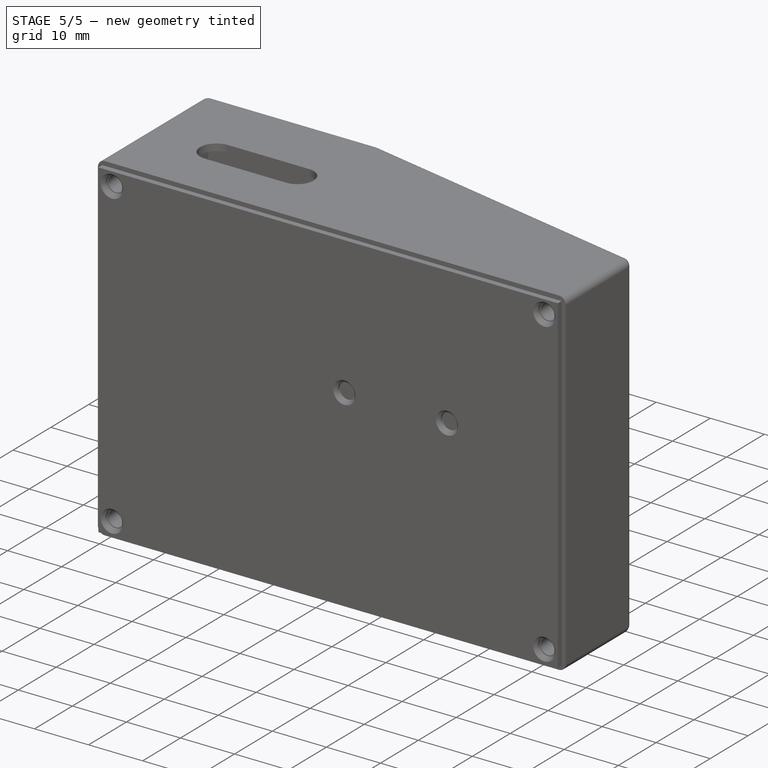
[diagram: stage 5 of 5 — iso view after this stage's code; geometry added in this stage tinted green]
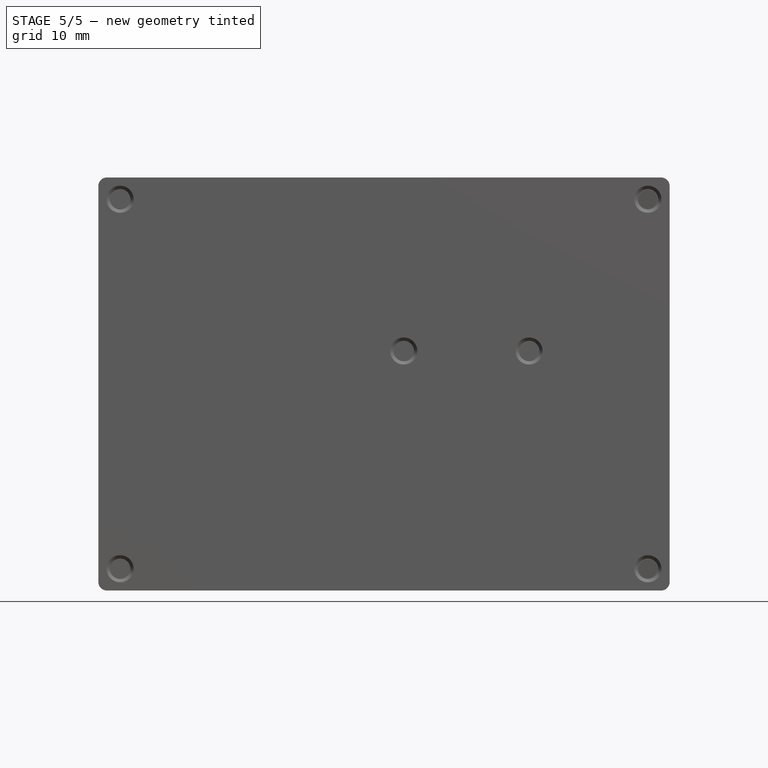
[diagram: stage 5 of 5 — front view after this stage's code; geometry added in this stage tinted green]
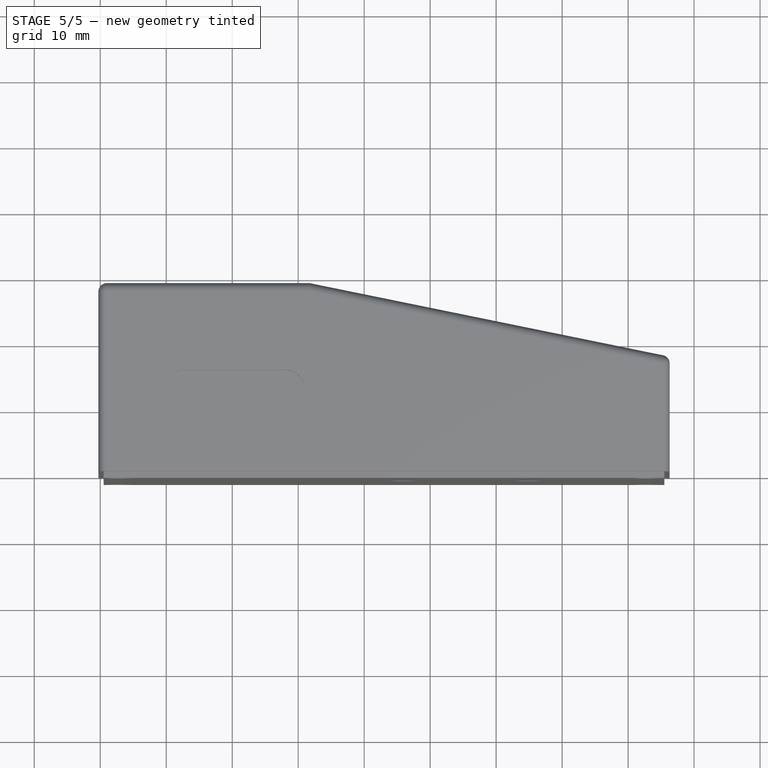
[diagram: stage 5 of 5 — top view after this stage's code; geometry added in this stage tinted green]
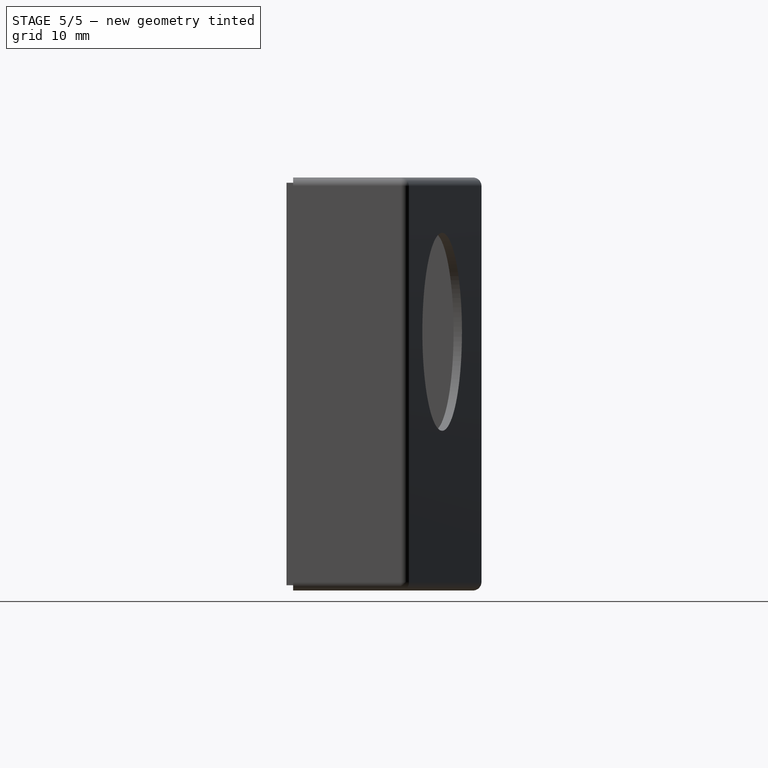
[diagram: stage 5 of 5 — right view after this stage's code; geometry added in this stage tinted green]
FEATURE [Sketcher::SketchObject] Sketch003
  ExternalGeometry = -> [Pocket]
  MapMode = 5
  Placement = pos=(0,0,0) rot=(1,0,0;1.5708rad)
  Support = -> [Pocket]
  sketch-geometry (2):
    g0: Circle CenterX=-15 CenterY=0 CenterZ=0 NormalX=0 NormalY=0 NormalZ=1 AngleXU=0 Radius=1.4
    g1: Circle CenterX=-33.9898 CenterY=0 CenterZ=0 NormalX=0 NormalY=0 NormalZ=1 AngleXU=0 Radius=1.4
  constraints (7):
    c: PointOnObject(g0,g-1)
    c: PointOnObject(g1,g-1)
    c: Equal(g1,g0)
    c: Radius(g1) = 1.4
    c: DistanceX(g0,g-1) = 15
    c: Distance(g1,g-3) = 15
    c: Distance(g0,g1) = 18.9898
FEATURE [PartDesign::Pocket] Pocket001
  BaseFeature = -> Pocket
  Length = 5
  Length2 = 100
  Profile = -> Sketch003
  Type = 1
FEATURE [Sketcher::SketchObject] Sketch004
  ExternalGeometry = -> [Pocket001]
  MapMode = 5
  Placement = pos=(0,0,0) rot=(1,0,0;1.5708rad)
  Support = -> [Pocket001]
  sketch-geometry (2):
    g0: Circle CenterX=-15 CenterY=0 CenterZ=0 NormalX=0 NormalY=0 NormalZ=1 AngleXU=0 Radius=1.6
    g1: Circle CenterX=-15 CenterY=0 CenterZ=0 NormalX=0 NormalY=0 NormalZ=1 AngleXU=0 Radius=3
  constraints (4):
    c: Coincident(g0,g-3)
    c: Coincident(g1,g0)
    c: Radius(g0) = 1.6
    c: Radius(g1) = 3
FEATURE [PartDesign::Pad] Pad002
  BaseFeature = -> Pocket001
  Length = 4
  Length2 = 100
  Profile = -> Sketch004
  Reversed = true
  Type = 0
FEATURE [Sketcher::SketchObject] Sketch005
  ExternalGeometry = -> [Pad002]
  MapMode = 5
  Placement = pos=(0,0,0) rot=(1,0,0;1.5708rad)
  Support = -> [Pad002]
  sketch-geometry (2):
    g0: Circle CenterX=-33.9898 CenterY=0 CenterZ=0 NormalX=0 NormalY=0 NormalZ=1 AngleXU=0 Radius=1.6
    g1: Circle CenterX=-33.9898 CenterY=0 CenterZ=0 NormalX=0 NormalY=0 NormalZ=1 AngleXU=0 Radius=3
  constraints (4):
    c: Coincident(g0,g-3)
    c: Coincident(g1,g0)
    c: Radius(g1) = 3
    c: Radius(g0) = 1.6
FEATURE [PartDesign::Pad] Pad003
  BaseFeature = -> Pad002
  Length = 8
  Length2 = 100
  Profile = -> Sketch005
  Reversed = true
  Type = 0
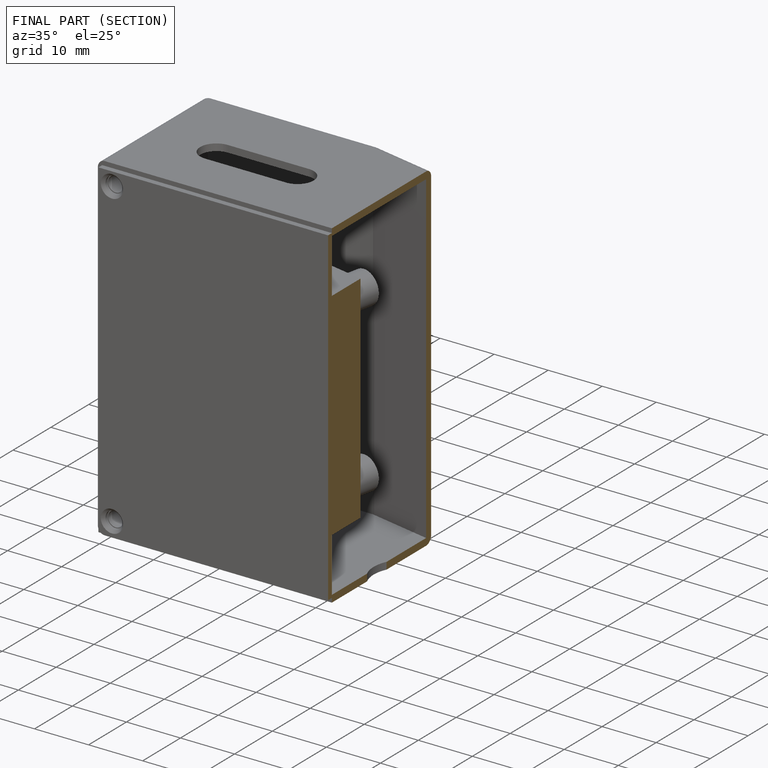
[diagram: finished part — half-section view (interior)]
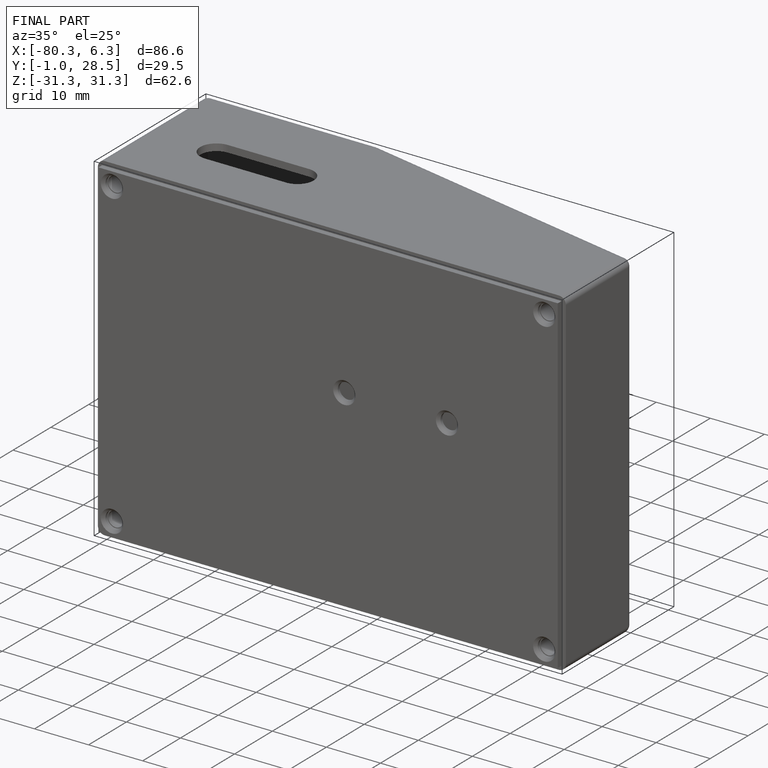
[diagram: finished part — iso view with bounding-box wireframe]
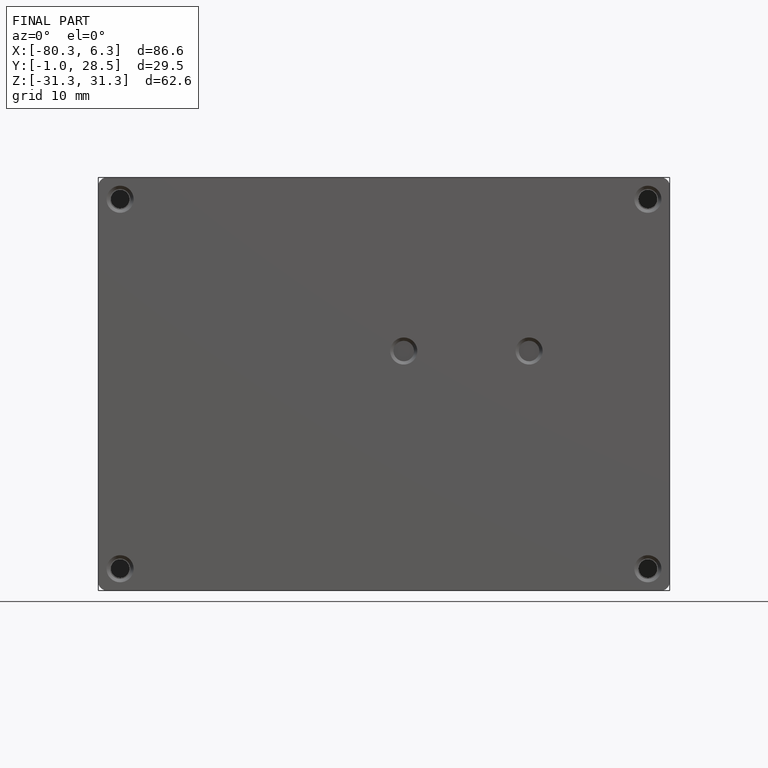
[diagram: finished part — front view with bounding-box wireframe]
